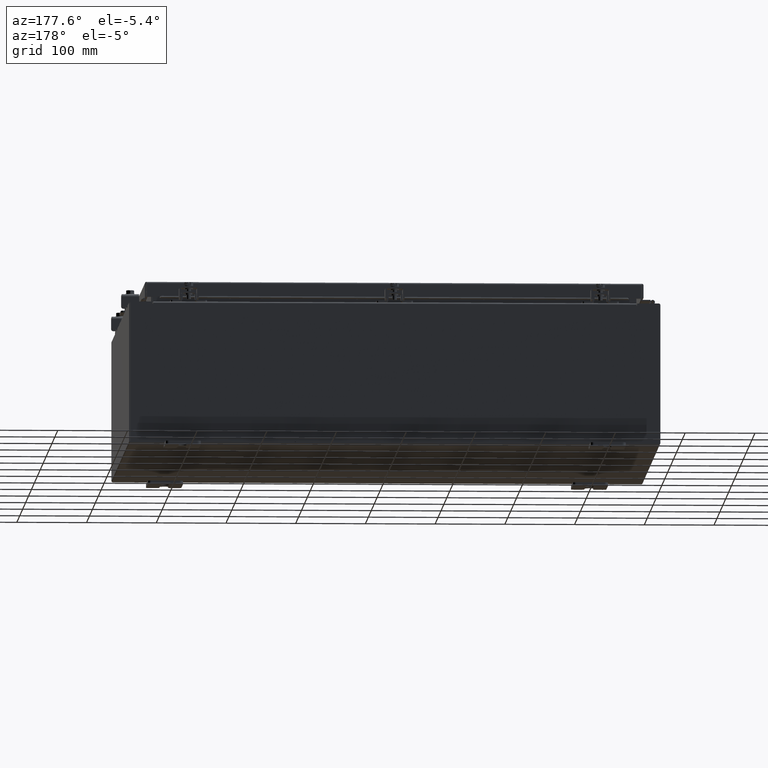
[diagram: clean part render]
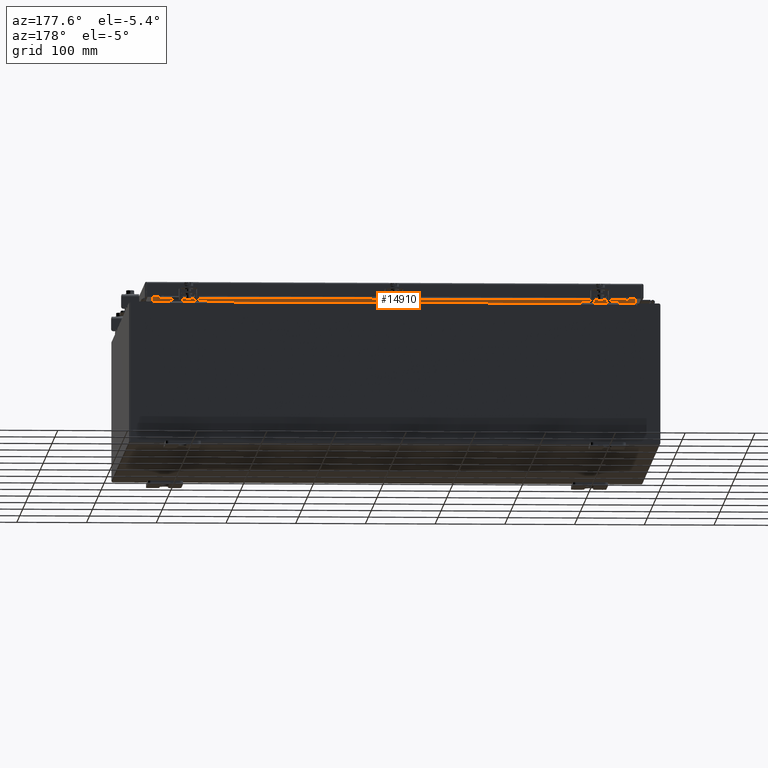
[diagram: same view with one face highlighted and labeled with its STEP entity id]
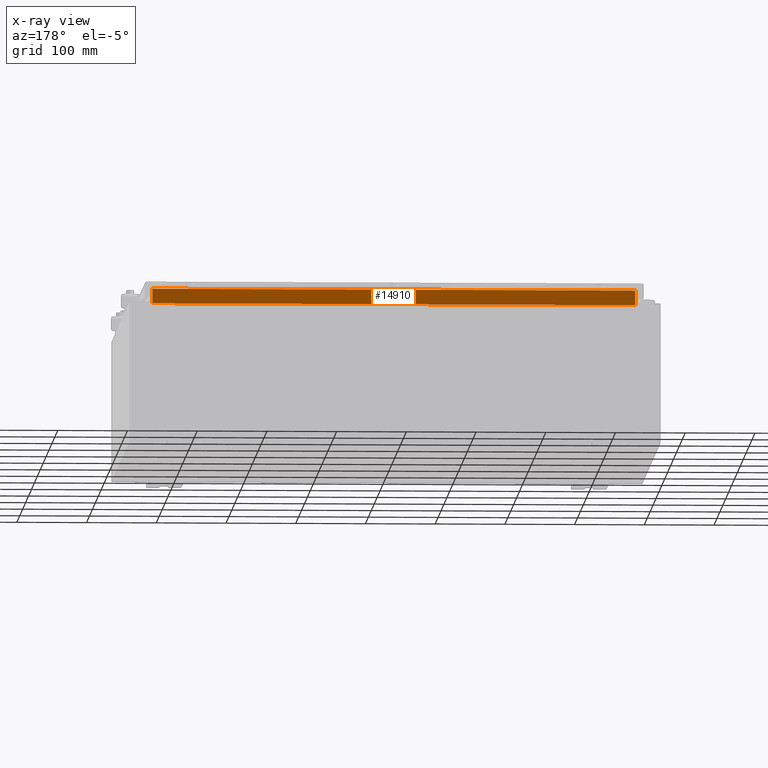
[diagram: x-ray of the same camera — body ghosted, the highlighted face saturated]
A machine part, auxiliary view. The second image highlights one B-rep face of the part: STEP entity #14910.
The next image is the same camera in x-ray: the body ghosted, the highlighted face saturated — about 0% of this face is hidden behind the body in this view.
In plain terms, the highlighted planar face has unit normal (0, 1, 0).
Its self-contained STEP definition (entity closure, byte-faithful):
#1650 = EDGE_CURVE ( 'NONE', #23309, #21916, #31568, .T. ) ;
#1813 = CARTESIAN_POINT ( 'NONE',  ( 13.63720000000000000, -1.300299999999999800, 4.013000000000003500 ) ) ;
#1841 = DIRECTION ( 'NONE',  ( 0.0000000000000000000, 1.000000000000000000, 0.0000000000000000000 ) ) ;
#4619 = LINE ( 'NONE', #8591, #10518 ) ;
#4818 = VECTOR ( 'NONE', #26128, 39.37007874015748100 ) ;
#5610 = LINE ( 'NONE', #21065, #4818 ) ;
#8318 = CARTESIAN_POINT ( 'NONE',  ( -13.63719999999999800, -1.300299999999999800, 4.013000000000003500 ) ) ;
#8591 = CARTESIAN_POINT ( 'NONE',  ( -13.63719999999999800, -1.300299999999999800, 4.000000000000004400 ) ) ;
#9307 = CARTESIAN_POINT ( 'NONE',  ( 0.0000000000000000000, -1.300299999999999800, 0.0000000000000000000 ) ) ;
#10518 = VECTOR ( 'NONE', #23666, 39.37007874015748100 ) ;
#11124 = DIRECTION ( 'NONE',  ( -1.000000000000000000, -0.0000000000000000000, -0.0000000000000000000 ) ) ;
#11650 = VERTEX_POINT ( 'NONE', #8318 ) ;
#13597 = FACE_OUTER_BOUND ( 'NONE', #24097, .T. ) ;
#13599 = VECTOR ( 'NONE', #28277, 39.37007874015748100 ) ;
#14043 = EDGE_CURVE ( 'NONE', #21916, #11650, #4619, .T. ) ;
#14170 = CARTESIAN_POINT ( 'NONE',  ( -13.63719999999999800, -1.300299999999999300, 4.837600000000003700 ) ) ;
#14910 = ADVANCED_FACE ( 'NONE', ( #13597 ), #31922, .T. ) ;
#15734 = CARTESIAN_POINT ( 'NONE',  ( -13.63719999999999800, -1.300299999999999800, 4.013000000000003500 ) ) ;
#19401 = DIRECTION ( 'NONE',  ( 0.0000000000000000000, -0.0000000000000000000, 1.000000000000000000 ) ) ;
#19633 = ORIENTED_EDGE ( 'NONE', *, *, #20378, .F. ) ;
#20373 = CARTESIAN_POINT ( 'NONE',  ( 13.63720000000000400, -1.300299999999999800, 4.837600000000003700 ) ) ;
#20378 = EDGE_CURVE ( 'NONE', #21278, #23309, #5610, .T. ) ;
#21065 = CARTESIAN_POINT ( 'NONE',  ( 13.63720000000000400, -1.300299999999999800, 4.925300000000004500 ) ) ;
#21278 = VERTEX_POINT ( 'NONE', #1813 ) ;
#21618 = AXIS2_PLACEMENT_3D ( 'NONE', #9307, #1841, #19401 ) ;
#21908 = LINE ( 'NONE', #15734, #13599 ) ;
#21916 = VERTEX_POINT ( 'NONE', #14170 ) ;
#23309 = VERTEX_POINT ( 'NONE', #20373 ) ;
#23381 = ORIENTED_EDGE ( 'NONE', *, *, #14043, .F. ) ;
#23666 = DIRECTION ( 'NONE',  ( -0.0000000000000000000, -0.0000000000000000000, -1.000000000000000000 ) ) ;
#23781 = ORIENTED_EDGE ( 'NONE', *, *, #30122, .F. ) ;
#24097 = EDGE_LOOP ( 'NONE', ( #23381, #30646, #19633, #23781 ) ) ;
#26128 = DIRECTION ( 'NONE',  ( -0.0000000000000000000, -0.0000000000000000000, 1.000000000000000000 ) ) ;
#26196 = CARTESIAN_POINT ( 'NONE',  ( 13.63720000000000400, -1.300299999999999300, 4.837600000000003700 ) ) ;
#28277 = DIRECTION ( 'NONE',  ( 1.000000000000000000, 0.0000000000000000000, -2.003232330437526000E-017 ) ) ;
#29201 = VECTOR ( 'NONE', #11124, 39.37007874015748100 ) ;
#30122 = EDGE_CURVE ( 'NONE', #11650, #21278, #21908, .T. ) ;
#30646 = ORIENTED_EDGE ( 'NONE', *, *, #1650, .F. ) ;
#31568 = LINE ( 'NONE', #26196, #29201 ) ;
#31922 = PLANE ( 'NONE',  #21618 ) ;